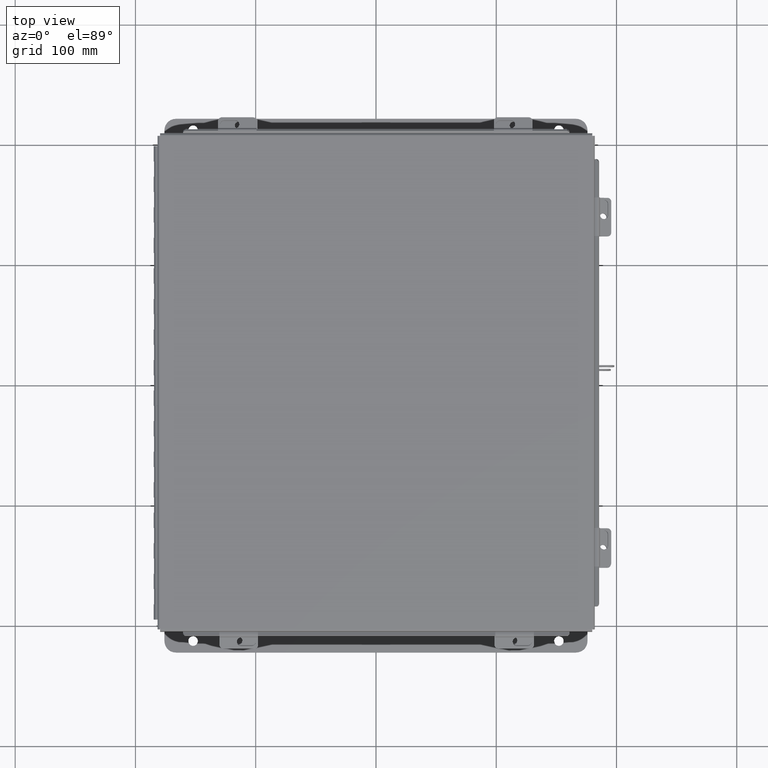
[diagram: clean part render]
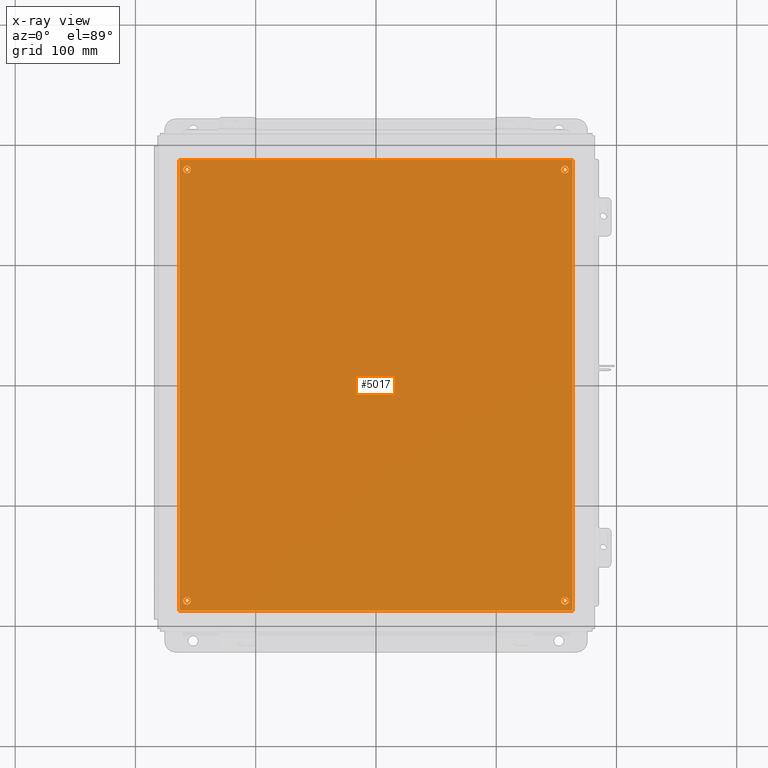
[diagram: x-ray — body ghosted, one internal face saturated and labeled with its STEP entity id]
A machine part, top view, then the same camera in x-ray: the body is ghosted and one INTERNAL B-rep face — a face not visible from any outside direction — is saturated and labeled: STEP entity #5017.
In plain terms, the highlighted planar face has unit normal (0, 0, -1).
Its self-contained STEP definition (entity closure, byte-faithful):
#120 = CARTESIAN_POINT ( 'NONE',  ( 0.2500000000000020000, 0.3120000000000015000, -0.07470000000000003000 ) ) ;
#188 = CARTESIAN_POINT ( 'NONE',  ( 12.50000000000000500, 14.43799999999999700, -0.07470000000000003000 ) ) ;
#574 = EDGE_LOOP ( 'NONE', ( #14721, #16159 ) ) ;
#594 = VECTOR ( 'NONE', #11521, 39.37007874015748100 ) ;
#617 = EDGE_CURVE ( 'NONE', #16866, #17794, #5157, .T. ) ;
#726 = CIRCLE ( 'NONE', #6174, 0.1250000000000000600 ) ;
#973 = EDGE_CURVE ( 'NONE', #11526, #2017, #15382, .T. ) ;
#1011 = EDGE_CURVE ( 'NONE', #11072, #6400, #14889, .T. ) ;
#1142 = VECTOR ( 'NONE', #9160, 39.37007874015748100 ) ;
#1577 = DIRECTION ( 'NONE',  ( -1.000000000000000000, 0.0000000000000000000, 0.0000000000000000000 ) ) ;
#1610 = PLANE ( 'NONE',  #20039 ) ;
#1652 = EDGE_CURVE ( 'NONE', #6400, #11072, #7026, .T. ) ;
#2017 = VERTEX_POINT ( 'NONE', #8887 ) ;
#2170 = ORIENTED_EDGE ( 'NONE', *, *, #617, .T. ) ;
#2203 = EDGE_CURVE ( 'NONE', #17859, #3399, #2456, .T. ) ;
#2216 = VECTOR ( 'NONE', #19382, 39.37007874015748100 ) ;
#2221 = DIRECTION ( 'NONE',  ( -0.0000000000000000000, -0.0000000000000000000, 1.000000000000000000 ) ) ;
#2286 = EDGE_CURVE ( 'NONE', #17794, #16866, #12394, .T. ) ;
#2289 = ORIENTED_EDGE ( 'NONE', *, *, #6262, .F. ) ;
#2325 = AXIS2_PLACEMENT_3D ( 'NONE', #3790, #11449, #15010 ) ;
#2423 = EDGE_CURVE ( 'NONE', #19418, #2882, #6753, .T. ) ;
#2456 = CIRCLE ( 'NONE', #13955, 0.1250000000000000600 ) ;
#2565 = AXIS2_PLACEMENT_3D ( 'NONE', #11480, #2221, #13058 ) ;
#2882 = VERTEX_POINT ( 'NONE', #17609 ) ;
#2996 = CARTESIAN_POINT ( 'NONE',  ( 0.0000000000000000000, 0.0000000000000000000, -0.07470000000000003000 ) ) ;
#3208 = DIRECTION ( 'NONE',  ( 0.0000000000000000000, 0.0000000000000000000, -1.000000000000000000 ) ) ;
#3217 = LINE ( 'NONE', #4614, #10438 ) ;
#3399 = VERTEX_POINT ( 'NONE', #14996 ) ;
#3442 = CARTESIAN_POINT ( 'NONE',  ( 0.0000000000000000000, 0.0000000000000000000, -0.07470000000000003000 ) ) ;
#3790 = CARTESIAN_POINT ( 'NONE',  ( 12.62500000000000700, 0.3120000000000058300, -0.07470000000000003000 ) ) ;
#3954 = CARTESIAN_POINT ( 'NONE',  ( 12.75000000000000500, 0.3120000000000058300, -0.07470000000000003000 ) ) ;
#4570 = EDGE_LOOP ( 'NONE', ( #8337, #20114, #2289, #17956 ) ) ;
#4614 = CARTESIAN_POINT ( 'NONE',  ( 0.0000000000000000000, 0.0000000000000000000, -0.07470000000000003000 ) ) ;
#4758 = CARTESIAN_POINT ( 'NONE',  ( 0.0000000000000000000, 14.75000000000000000, -0.07470000000000003000 ) ) ;
#4894 = CIRCLE ( 'NONE', #2565, 0.1249999999999993500 ) ;
#4987 = CARTESIAN_POINT ( 'NONE',  ( 12.87500000000000000, 0.0000000000000000000, -0.07470000000000003000 ) ) ;
#5017 = ADVANCED_FACE ( 'NONE', ( #20083, #15909, #12753, #11741, #7597 ), #1610, .T. ) ;
#5157 = CIRCLE ( 'NONE', #15781, 0.1250000000000000000 ) ;
#5174 = EDGE_LOOP ( 'NONE', ( #11732, #11770 ) ) ;
#5295 = CARTESIAN_POINT ( 'NONE',  ( 0.2499999999999998100, 14.43799999999999500, -0.07470000000000003000 ) ) ;
#6174 = AXIS2_PLACEMENT_3D ( 'NONE', #7621, #18563, #9177 ) ;
#6197 = DIRECTION ( 'NONE',  ( -0.0000000000000000000, -0.0000000000000000000, 1.000000000000000000 ) ) ;
#6262 = EDGE_CURVE ( 'NONE', #15746, #19418, #12942, .T. ) ;
#6390 = CARTESIAN_POINT ( 'NONE',  ( 0.3749999999999998300, 14.43799999999999500, -0.07470000000000003000 ) ) ;
#6400 = VERTEX_POINT ( 'NONE', #188 ) ;
#6575 = CARTESIAN_POINT ( 'NONE',  ( 0.3750000000000020000, 0.3120000000000015000, -0.07470000000000003000 ) ) ;
#6690 = DIRECTION ( 'NONE',  ( -0.0000000000000000000, -0.0000000000000000000, 1.000000000000000000 ) ) ;
#6753 = LINE ( 'NONE', #4758, #2216 ) ;
#6854 = DIRECTION ( 'NONE',  ( -1.000000000000000000, 0.0000000000000000000, -0.0000000000000000000 ) ) ;
#7026 = CIRCLE ( 'NONE', #10155, 0.1249999999999993500 ) ;
#7274 = EDGE_LOOP ( 'NONE', ( #19356, #16872 ) ) ;
#7574 = DIRECTION ( 'NONE',  ( 1.000000000000000000, 0.0000000000000000000, 0.0000000000000000000 ) ) ;
#7597 = FACE_OUTER_BOUND ( 'NONE', #4570, .T. ) ;
#7621 = CARTESIAN_POINT ( 'NONE',  ( 0.2500000000000020000, 0.3120000000000015000, -0.07470000000000003000 ) ) ;
#8337 = ORIENTED_EDGE ( 'NONE', *, *, #9918, .F. ) ;
#8643 = DIRECTION ( 'NONE',  ( -1.000000000000000000, 0.0000000000000000000, 0.0000000000000000000 ) ) ;
#8872 = DIRECTION ( 'NONE',  ( -1.000000000000000000, 0.0000000000000000000, 0.0000000000000000000 ) ) ;
#8887 = CARTESIAN_POINT ( 'NONE',  ( 12.50000000000000700, 0.3120000000000058300, -0.07470000000000003000 ) ) ;
#9160 = DIRECTION ( 'NONE',  ( -0.0000000000000000000, -1.000000000000000000, -0.0000000000000000000 ) ) ;
#9177 = DIRECTION ( 'NONE',  ( -1.000000000000000000, 0.0000000000000000000, 0.0000000000000000000 ) ) ;
#9757 = CARTESIAN_POINT ( 'NONE',  ( 0.1249999999999997900, 14.43799999999999500, -0.07470000000000003000 ) ) ;
#9918 = EDGE_CURVE ( 'NONE', #2882, #11256, #13499, .T. ) ;
#10155 = AXIS2_PLACEMENT_3D ( 'NONE', #10838, #10453, #8643 ) ;
#10218 = DIRECTION ( 'NONE',  ( -1.000000000000000000, 0.0000000000000000000, 0.0000000000000000000 ) ) ;
#10438 = VECTOR ( 'NONE', #7574, 39.37007874015748100 ) ;
#10453 = DIRECTION ( 'NONE',  ( -0.0000000000000000000, -0.0000000000000000000, 1.000000000000000000 ) ) ;
#10838 = CARTESIAN_POINT ( 'NONE',  ( 12.62500000000000400, 14.43799999999999700, -0.07470000000000003000 ) ) ;
#11072 = VERTEX_POINT ( 'NONE', #16915 ) ;
#11256 = VERTEX_POINT ( 'NONE', #3442 ) ;
#11449 = DIRECTION ( 'NONE',  ( -0.0000000000000000000, -0.0000000000000000000, 1.000000000000000000 ) ) ;
#11480 = CARTESIAN_POINT ( 'NONE',  ( 12.62500000000000700, 0.3120000000000058300, -0.07470000000000003000 ) ) ;
#11521 = DIRECTION ( 'NONE',  ( 0.0000000000000000000, 1.000000000000000000, 0.0000000000000000000 ) ) ;
#11526 = VERTEX_POINT ( 'NONE', #3954 ) ;
#11732 = ORIENTED_EDGE ( 'NONE', *, *, #1011, .T. ) ;
#11741 = FACE_BOUND ( 'NONE', #17456, .T. ) ;
#11770 = ORIENTED_EDGE ( 'NONE', *, *, #1652, .T. ) ;
#11955 = ORIENTED_EDGE ( 'NONE', *, *, #2286, .T. ) ;
#12124 = AXIS2_PLACEMENT_3D ( 'NONE', #15332, #6197, #1577 ) ;
#12394 = CIRCLE ( 'NONE', #17351, 0.1250000000000000000 ) ;
#12753 = FACE_BOUND ( 'NONE', #5174, .T. ) ;
#12829 = CARTESIAN_POINT ( 'NONE',  ( 0.0000000000000000000, 0.0000000000000000000, -0.07470000000000003000 ) ) ;
#12942 = LINE ( 'NONE', #17585, #594 ) ;
#13058 = DIRECTION ( 'NONE',  ( -1.000000000000000000, 0.0000000000000000000, 0.0000000000000000000 ) ) ;
#13256 = CARTESIAN_POINT ( 'NONE',  ( 12.87500000000000000, 14.75000000000000000, -0.07470000000000003000 ) ) ;
#13499 = LINE ( 'NONE', #2996, #1142 ) ;
#13621 = DIRECTION ( 'NONE',  ( -1.000000000000000000, 0.0000000000000000000, 0.0000000000000000000 ) ) ;
#13955 = AXIS2_PLACEMENT_3D ( 'NONE', #120, #18390, #8872 ) ;
#14721 = ORIENTED_EDGE ( 'NONE', *, *, #973, .T. ) ;
#14889 = CIRCLE ( 'NONE', #12124, 0.1249999999999993500 ) ;
#14996 = CARTESIAN_POINT ( 'NONE',  ( 0.1250000000000019200, 0.3120000000000015000, -0.07470000000000003000 ) ) ;
#15010 = DIRECTION ( 'NONE',  ( -1.000000000000000000, 0.0000000000000000000, 0.0000000000000000000 ) ) ;
#15332 = CARTESIAN_POINT ( 'NONE',  ( 12.62500000000000400, 14.43799999999999700, -0.07470000000000003000 ) ) ;
#15382 = CIRCLE ( 'NONE', #2325, 0.1249999999999993500 ) ;
#15746 = VERTEX_POINT ( 'NONE', #4987 ) ;
#15781 = AXIS2_PLACEMENT_3D ( 'NONE', #19649, #19843, #10218 ) ;
#15909 = FACE_BOUND ( 'NONE', #574, .T. ) ;
#16159 = ORIENTED_EDGE ( 'NONE', *, *, #19341, .T. ) ;
#16866 = VERTEX_POINT ( 'NONE', #9757 ) ;
#16872 = ORIENTED_EDGE ( 'NONE', *, *, #17291, .T. ) ;
#16915 = CARTESIAN_POINT ( 'NONE',  ( 12.75000000000000400, 14.43799999999999700, -0.07470000000000003000 ) ) ;
#17291 = EDGE_CURVE ( 'NONE', #3399, #17859, #726, .T. ) ;
#17351 = AXIS2_PLACEMENT_3D ( 'NONE', #5295, #6690, #13621 ) ;
#17456 = EDGE_LOOP ( 'NONE', ( #11955, #2170 ) ) ;
#17585 = CARTESIAN_POINT ( 'NONE',  ( 12.87500000000000000, 0.0000000000000000000, -0.07470000000000003000 ) ) ;
#17609 = CARTESIAN_POINT ( 'NONE',  ( 0.0000000000000000000, 14.75000000000000000, -0.07470000000000003000 ) ) ;
#17794 = VERTEX_POINT ( 'NONE', #6390 ) ;
#17859 = VERTEX_POINT ( 'NONE', #6575 ) ;
#17956 = ORIENTED_EDGE ( 'NONE', *, *, #19692, .F. ) ;
#18390 = DIRECTION ( 'NONE',  ( -0.0000000000000000000, -0.0000000000000000000, 1.000000000000000000 ) ) ;
#18563 = DIRECTION ( 'NONE',  ( -0.0000000000000000000, -0.0000000000000000000, 1.000000000000000000 ) ) ;
#19341 = EDGE_CURVE ( 'NONE', #2017, #11526, #4894, .T. ) ;
#19356 = ORIENTED_EDGE ( 'NONE', *, *, #2203, .T. ) ;
#19382 = DIRECTION ( 'NONE',  ( -1.000000000000000000, -0.0000000000000000000, -0.0000000000000000000 ) ) ;
#19418 = VERTEX_POINT ( 'NONE', #13256 ) ;
#19649 = CARTESIAN_POINT ( 'NONE',  ( 0.2499999999999998100, 14.43799999999999500, -0.07470000000000003000 ) ) ;
#19692 = EDGE_CURVE ( 'NONE', #11256, #15746, #3217, .T. ) ;
#19843 = DIRECTION ( 'NONE',  ( -0.0000000000000000000, -0.0000000000000000000, 1.000000000000000000 ) ) ;
#20039 = AXIS2_PLACEMENT_3D ( 'NONE', #12829, #3208, #6854 ) ;
#20083 = FACE_BOUND ( 'NONE', #7274, .T. ) ;
#20114 = ORIENTED_EDGE ( 'NONE', *, *, #2423, .F. ) ;